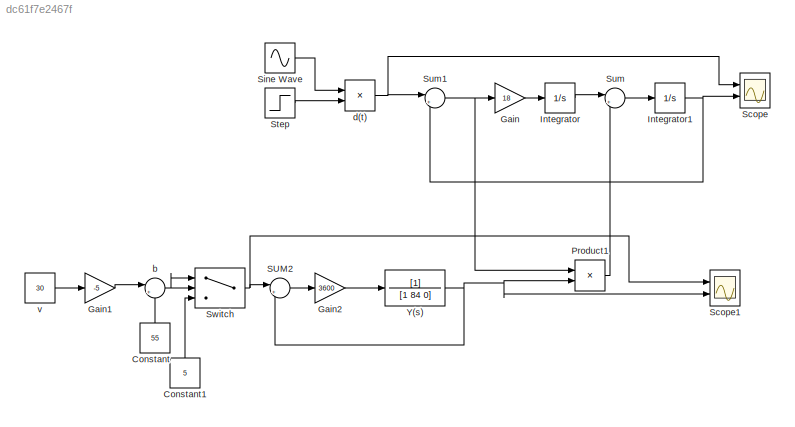
MODEL slx_dc61f7e2467f
KIND model
CONFIG AbsTol = auto
CONFIG EnableMultiTasking = off
CONFIG FixedStep = 0.001
CONFIG MaxStep = auto
CONFIG MinStep = auto
CONFIG RelTol = 1e-3
CONFIG SampleTimeConstraint = Unconstrained
CONFIG SolverName = FixedStepAuto
CONFIG StartTime = 0
CONFIG StopTime = 20
WORKSPACE source: mxarray member
WORKSPACE v = 1
BLOCK [Constant] Constant
  NameLocation = right
  Value = 55
BLOCK [Constant] Constant1
  NameLocation = right
  Value = 5
BLOCK [Gain] Gain
  Gain = 18
BLOCK [Gain] Gain1
  Gain = -5
BLOCK [Gain] Gain2
  Gain = 3600
BLOCK [Integrator] Integrator
  LowerSaturationLimit = -10000
  Ports = [1, 1]
  UpperSaturationLimit = 10000
BLOCK [Integrator] Integrator1
  LowerSaturationLimit = -10000
  Ports = [1, 1]
  UpperSaturationLimit = 10000
BLOCK [Product] Product1
  Ports = [2, 1]
BLOCK [Sum] SUM2
  Inputs = |+-
  Ports = [2, 1]
BLOCK [Scope] Scope
  Floating = off
  NumInputPorts = 2
  Ports = [2]
  ScopeSpecificationString = Simulink.scopes.TimeScopeBlockCfg('CurrentConfiguration', extmgr.ConfigurationSet(extmgr.Configuration('Core','General UI',true),extmgr.Configuration('Core','Source UI',true),extmgr.Configuration('Sources','WiredSimulink',true),extmgr.Configuration('Visuals','Time Domain',true,'SerializedDisplays',{struct('MinYLimReal','-12.5858','MaxYLimReal','12.57563','YLabelReal','','MinYLimMag','0.00000','Max...<+1489ch>
BLOCK [Scope] Scope1
  Floating = off
  NumInputPorts = 2
  Ports = [2]
  ScopeSpecificationString = Simulink.scopes.TimeScopeBlockCfg('CurrentConfiguration', extmgr.ConfigurationSet(extmgr.Configuration('Core','General UI',true),extmgr.Configuration('Core','Source UI',true),extmgr.Configuration('Sources','WiredSimulink',true,'DataLoggingVariableName','ScopeData1'),extmgr.Configuration('Visuals','Time Domain',true,'SerializedDisplays',{struct('MinYLimReal','-0.65374','MaxYLimReal','5.88364','YLab...<+1809ch>
BLOCK [Sin] Sine Wave
  Amplitude = 10
  Frequency = 30
  Ports = [0, 1]
  SampleTime = 0
BLOCK [Step] Step
  After = 0
  Before = 1
  SampleTime = 0
  Time = 5
BLOCK [Sum] Sum
  Inputs = |++
  Ports = [2, 1]
BLOCK [Sum] Sum1
  Inputs = |+-
  Ports = [2, 1]
BLOCK [Switch] Switch
  InputSameDT = off
  SaturateOnIntegerOverflow = off
  Threshold = 5
BLOCK [TransferFcn] Y(s)
  Denominator = [1 84 0]
BLOCK [Sum] b
  Inputs = |++
  OutMax = 200
  OutMin = 5
  Ports = [2, 1]
BLOCK [Product] d(t)
  Ports = [2, 1]
BLOCK [Constant] v
  Value = 30
LINE Constant1:1 -> Switch:3
LINE Constant:1 -> b:2
LINE Gain1:1 -> b:1
LINE Gain2:1 -> Y(s):1
LINE Gain:1 -> Integrator:1
NET Integrator1:1 -> Scope:2, Sum1:2
LINE Integrator:1 -> Sum:1
LINE Product1:1 -> Sum:2
LINE SUM2:1 -> Gain2:1
LINE Sine Wave:1 -> d(t):1
LINE Step:1 -> d(t):2
NET Sum1:1 -> Gain:1, Product1:1
LINE Sum:1 -> Integrator1:1
NET Switch:1 -> SUM2:1, Scope1:1
NET Y(s):1 -> Product1:2, SUM2:2, Scope1:2
NET b:1 -> Switch:1, Switch:2
NET d(t):1 -> Scope:1, Sum1:1
LINE v:1 -> Gain1:1
note: NET lines group one-source signal fan-out (src -> all destinations, sorted); 1:1 wires keep LINE
